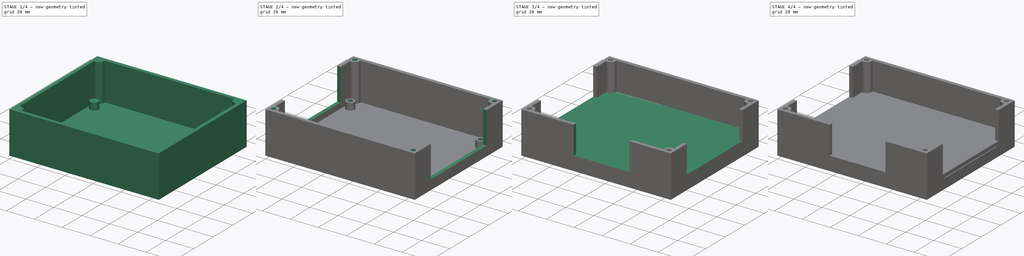
[diagram: build sequence overview — one tinted view per stage of 4, left to right]
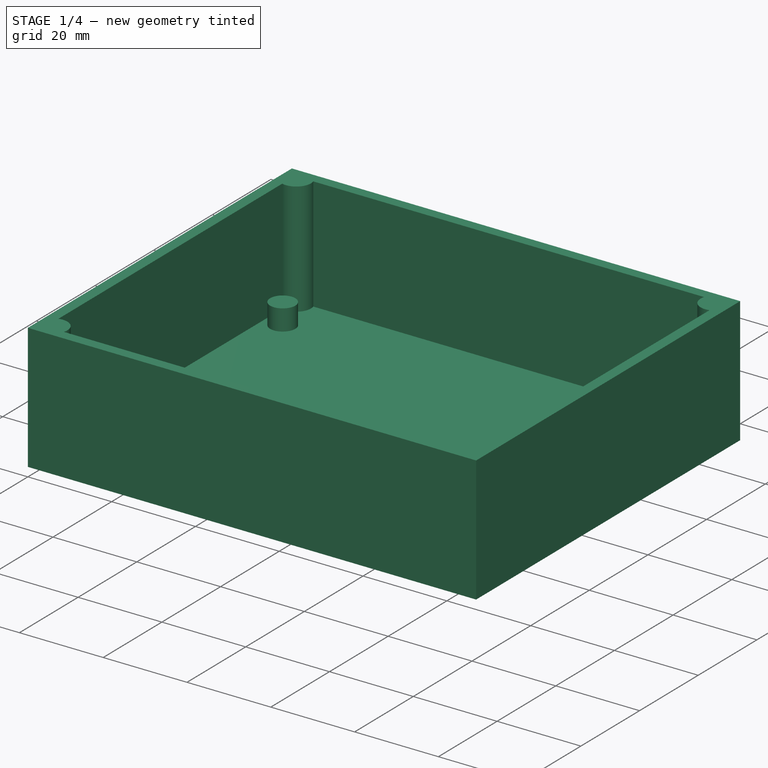
[diagram: stage 1 of 4 — iso view after this stage's code; geometry added in this stage tinted green]
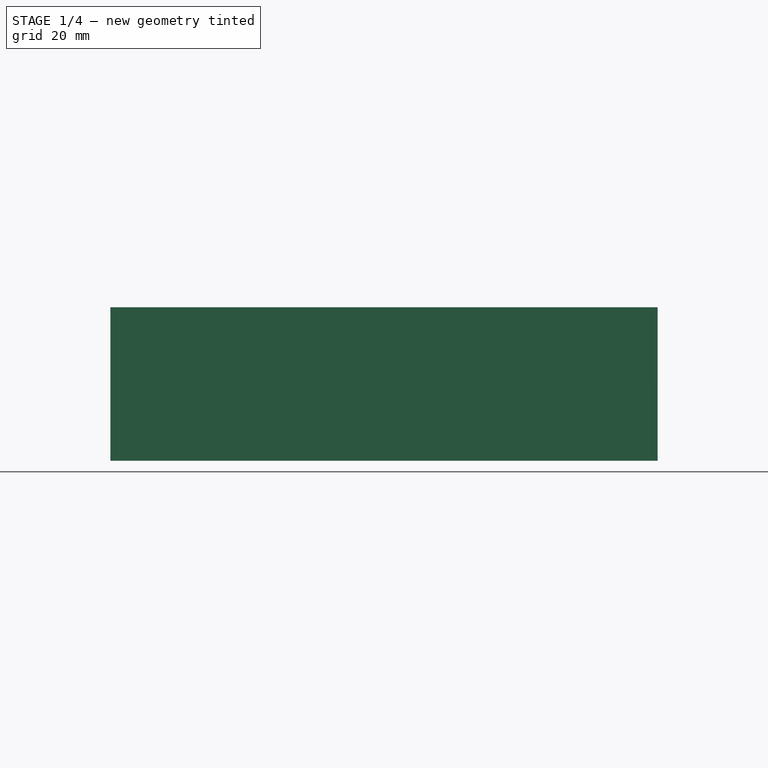
[diagram: stage 1 of 4 — front view after this stage's code; geometry added in this stage tinted green]
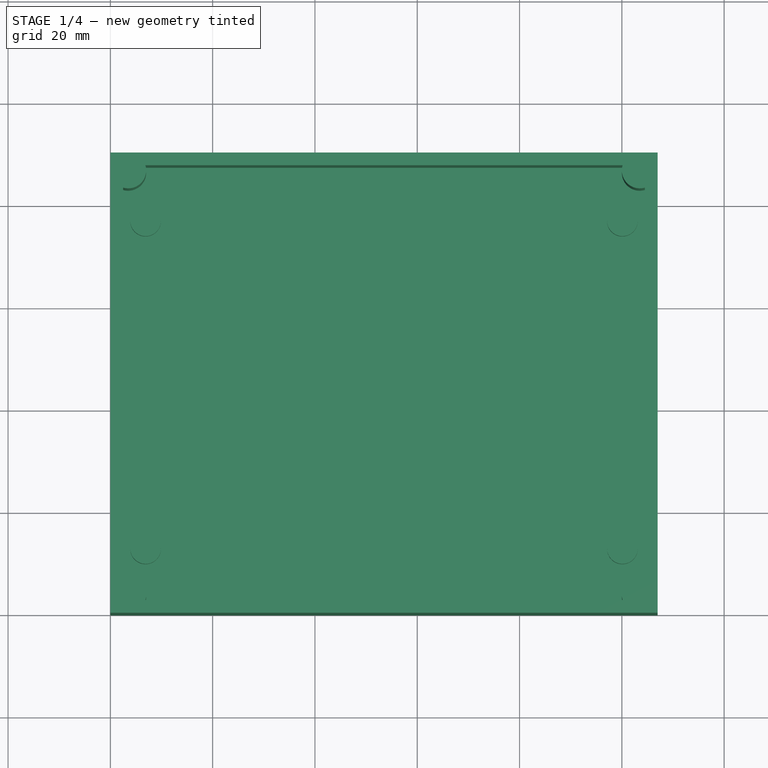
[diagram: stage 1 of 4 — top view after this stage's code; geometry added in this stage tinted green]
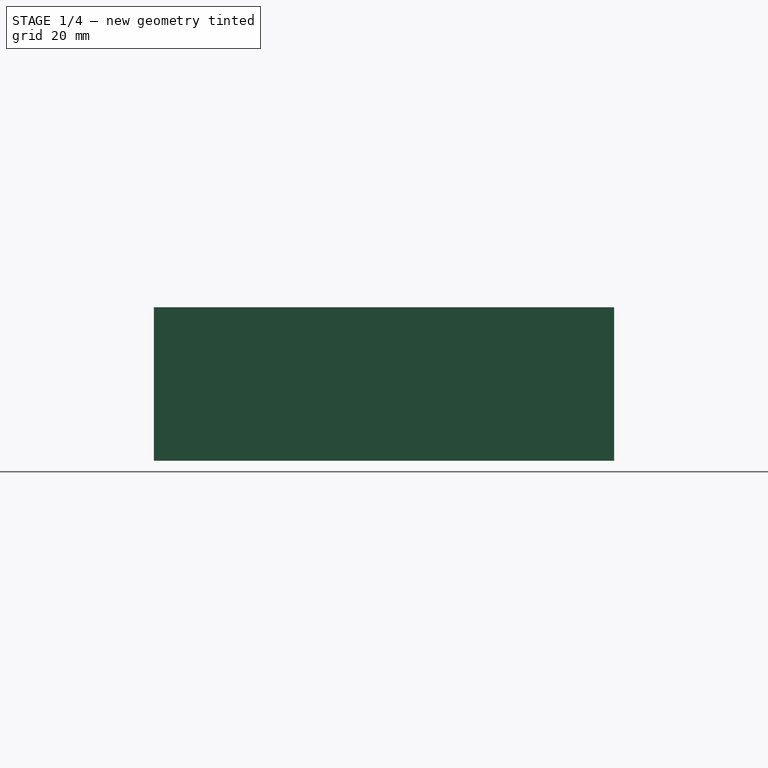
[diagram: stage 1 of 4 — right view after this stage's code; geometry added in this stage tinted green]
FCSTD DOCUMENT  (FreeCAD 0.20R29177 +426 (Git))
Label: moglabs-board-housing
License: All rights reserved
LicenseURL: http://en.wikipedia.org/wiki/All_rights_reserved
objects: Sketcher::SketchObject×12, Part::Feature×12, PartDesign::Pocket×8, App::Link×8, PartDesign::Pad×4, PartDesign::LinearPattern×4, PartDesign::MultiTransform×2, PartDesign::Body×2, App::LinkGroup×1
note: 56 computed .brp shape members not serialized (recipe doc carries the construction recipe); baked Part::Feature solids carry a one-line shape summary decoded from their .brp

FEATURE [Sketcher::SketchObject] Sketch
  FullyConstrained = true
  MapMode = 5
  Support = -> [XY_Plane]
  sketch-geometry (4):
    g0: LineSegment StartX=0 StartY=0 StartZ=0 EndX=107 EndY=0 EndZ=0
    g1: LineSegment StartX=107 StartY=0 StartZ=0 EndX=107 EndY=90 EndZ=0
    g2: LineSegment StartX=107 StartY=90 StartZ=0 EndX=0 EndY=90 EndZ=0
    g3: LineSegment StartX=0 StartY=90 StartZ=0 EndX=0 EndY=0 EndZ=0
  constraints (11):
    c: Coincident(g0,g1)
    c: Coincident(g1,g2)
    c: Coincident(g2,g3)
    c: Coincident(g3,g0)
    c: Horizontal(g0)
    c: Horizontal(g2)
    c: Vertical(g1)
    c: Vertical(g3)
    c: Coincident(g0,g-1)
    c: DistanceX(g2,g2) = 107
    c: DistanceY(g1,g1) = 90
FEATURE [PartDesign::Pad] Pad
  Direction = (0,0,1)
  Length = 30
  Length2 = 10
  Profile = -> Sketch
  ReferenceAxis = -> Sketch [N_Axis]
  Type = 0
FEATURE [Sketcher::SketchObject] Sketch001
  ExternalGeometry = -> [Pad]
  FullyConstrained = true
  MapMode = 5
  Placement = pos=(0,0,30) rot=(0,0,1;0rad)
  Support = -> [Pad]
  sketch-geometry (7):
    g0: LineSegment StartX=2.5 StartY=87.5 StartZ=0 EndX=104.5 EndY=87.5 EndZ=0
    g1: LineSegment StartX=104.5 StartY=87.5 StartZ=0 EndX=104.5 EndY=2.5 EndZ=0
    g2: LineSegment StartX=104.5 StartY=2.5 StartZ=0 EndX=2.5 EndY=2.5 EndZ=0
    g3: LineSegment StartX=2.5 StartY=2.5 StartZ=0 EndX=2.5 EndY=87.5 EndZ=0
    g4: LineSegment StartX=0 StartY=90 StartZ=0 EndX=107 EndY=0 EndZ=0
    g5: LineSegment StartX=107 StartY=90 StartZ=0 EndX=0 EndY=0 EndZ=0
    g6: GeomPoint X=53.5 Y=45 Z=0
  constraints (19):
    c: Coincident(g0,g1)
    c: Coincident(g1,g2)
    c: Coincident(g2,g3)
    c: Coincident(g3,g0)
    c: Horizontal(g0)
    c: Horizontal(g2)
    c: Vertical(g1)
    c: Vertical(g3)
    c: Coincident(g4,g-6)
    c: Coincident(g4,g-5)
    c: Coincident(g5,g-5)
    c: Coincident(g5,g-6)
    c: PointOnObject(g6,g4)
    c: PointOnObject(g6,g5)
    c: Symmetric(g0,g1,g6)
    c: DistanceX(g4,g0) = 2.5
    c: DistanceY(g0,g4) = 2.5
    c: Distance(g0) = 102
    c: Distance(g3) = 85
FEATURE [PartDesign::Pocket] Pocket
  BaseFeature = -> Pad
  Direction = (0,0,-1)
  Length = 27
  Length2 = 5
  Profile = -> Sketch001
  ReferenceAxis = -> Sketch001 [N_Axis]
  Type = 0
FEATURE [Sketcher::SketchObject] Sketch002
  ExternalGeometry = -> [Pocket]
  FullyConstrained = true
  MapMode = 5
  Placement = pos=(0,0,3) rot=(0,0,1;0rad)
  Support = -> [Pocket]
  sketch-geometry (4):
    g0: Circle CenterX=3.5 CenterY=86.5 CenterZ=0 NormalX=0 NormalY=0 NormalZ=1 AngleXU=0 Radius=3.5
    g1: Circle CenterX=3.5 CenterY=3.5 CenterZ=0 NormalX=0 NormalY=0 NormalZ=1 AngleXU=0 Radius=3.5
    g2: Circle CenterX=103.5 CenterY=86.5 CenterZ=0 NormalX=0 NormalY=0 NormalZ=1 AngleXU=0 Radius=3.5
    g3: Circle CenterX=103.5 CenterY=3.5 CenterZ=0 NormalX=0 NormalY=0 NormalZ=1 AngleXU=0 Radius=3.5
  constraints (12):
    c: Radius(g0) = 3.5
    c: Tangent(g0,g-11)
    c: Tangent(g0,g-12)
    c: Equal(g1,g0)
    c: Tangent(g1,g-12)
    c: Tangent(g1,g-14)
    c: Equal(g2,g0)
    c: Equal(g3,g0)
    c: Tangent(g2,g-11)
    c: Tangent(g2,g-13)
    c: Tangent(g3,g-13)
    c: Tangent(g3,g-14)
FEATURE [PartDesign::Pad] Pad001
  BaseFeature = -> Pocket
  Direction = (0,0,1)
  Length = 27
  Length2 = 10
  Profile = -> Sketch002
  ReferenceAxis = -> Sketch002 [N_Axis]
  Type = 0
FEATURE [Sketcher::SketchObject] Sketch003
  ExternalGeometry = -> [Pad001]
  FullyConstrained = true
  MapMode = 5
  Placement = pos=(0,0,3) rot=(0,0,1;0rad)
  Support = -> [Pad001]
  sketch-geometry (11):
    g0: Circle CenterX=6.891 CenterY=77.04 CenterZ=0 NormalX=0 NormalY=0 NormalZ=1 AngleXU=0 Radius=3
    g1: Circle CenterX=6.891 CenterY=12.96 CenterZ=0 NormalX=0 NormalY=0 NormalZ=1 AngleXU=0 Radius=3
    g2: Circle CenterX=100.109 CenterY=77.04 CenterZ=0 NormalX=0 NormalY=0 NormalZ=1 AngleXU=0 Radius=3
    g3: Circle CenterX=100.109 CenterY=12.96 CenterZ=0 NormalX=0 NormalY=0 NormalZ=1 AngleXU=0 Radius=3
    g4: LineSegment StartX=6.891 StartY=77.04 StartZ=0 EndX=100.109 EndY=77.04 EndZ=0
    g5: LineSegment StartX=100.109 StartY=77.04 StartZ=0 EndX=100.109 EndY=12.96 EndZ=0
    g6: LineSegment StartX=100.109 StartY=12.96 StartZ=0 EndX=6.891 EndY=12.96 EndZ=0
    g7: LineSegment StartX=6.891 StartY=12.96 StartZ=0 EndX=6.891 EndY=77.04 EndZ=0
    g8: GeomPoint X=53.5 Y=45 Z=0
    g9: LineSegment StartX=0 StartY=90 StartZ=0 EndX=107 EndY=0 EndZ=0
    g10: LineSegment StartX=107 StartY=90 StartZ=0 EndX=0 EndY=0 EndZ=0
  constraints (25):
    c: Diameter(g0) = 6
    c: Equal(g1,g0)
    c: Equal(g2,g0)
    c: Equal(g3,g0)
    c: Coincident(g4,g5)
    c: Coincident(g5,g6)
    c: Coincident(g6,g7)
    c: Coincident(g7,g4)
    c: Horizontal(g4)
    c: Horizontal(g6)
    c: Vertical(g5)
    c: Vertical(g7)
    c: DistanceX(g4,g4) = 93.218
    c: DistanceY(g7,g7) = 64.08
    c: Coincident(g0,g4)
    c: Coincident(g1,g6)
    c: Coincident(g2,g4)
    c: Coincident(g3,g5)
    c: Symmetric(g0,g3,g8)
    c: Coincident(g9,g-10)
    c: Coincident(g9,g-8)
    c: Coincident(g10,g-9)
    c: Coincident(g10,g-11)
    c: PointOnObject(g8,g9)
    c: PointOnObject(g8,g10)
FEATURE [PartDesign::Pad] Pad002
  BaseFeature = -> Pad001
  Direction = (0,0,1)
  Length = 5
  Length2 = 10
  Profile = -> Sketch003
  ReferenceAxis = -> Sketch003 [N_Axis]
  Type = 0
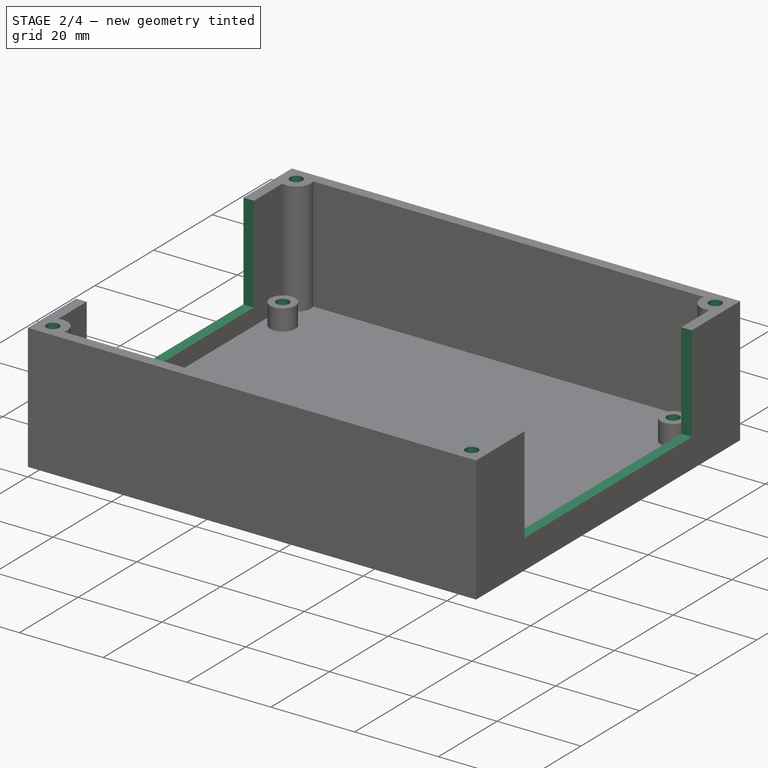
[diagram: stage 2 of 4 — iso view after this stage's code; geometry added in this stage tinted green]
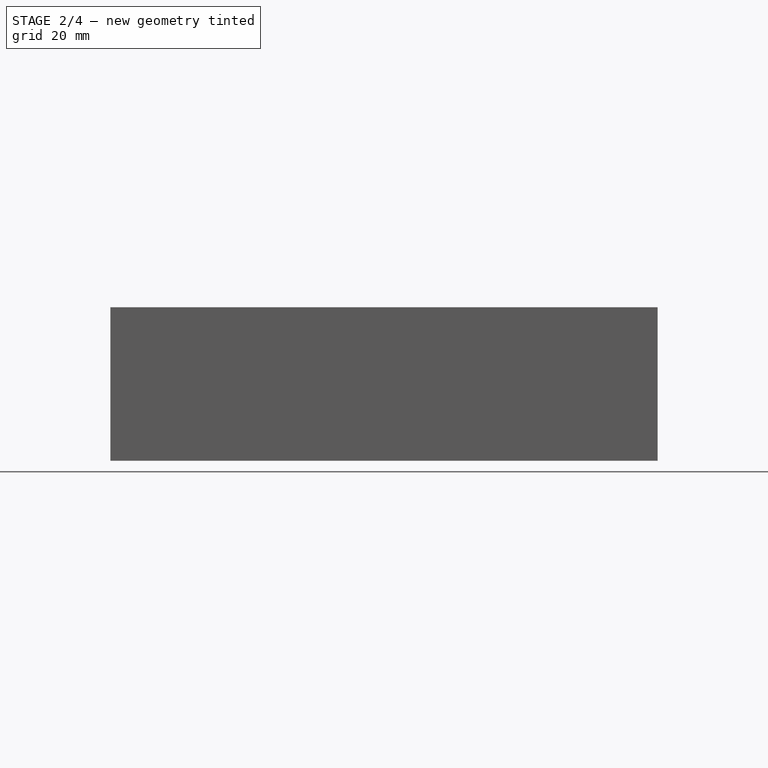
[diagram: stage 2 of 4 — front view after this stage's code; geometry added in this stage tinted green]
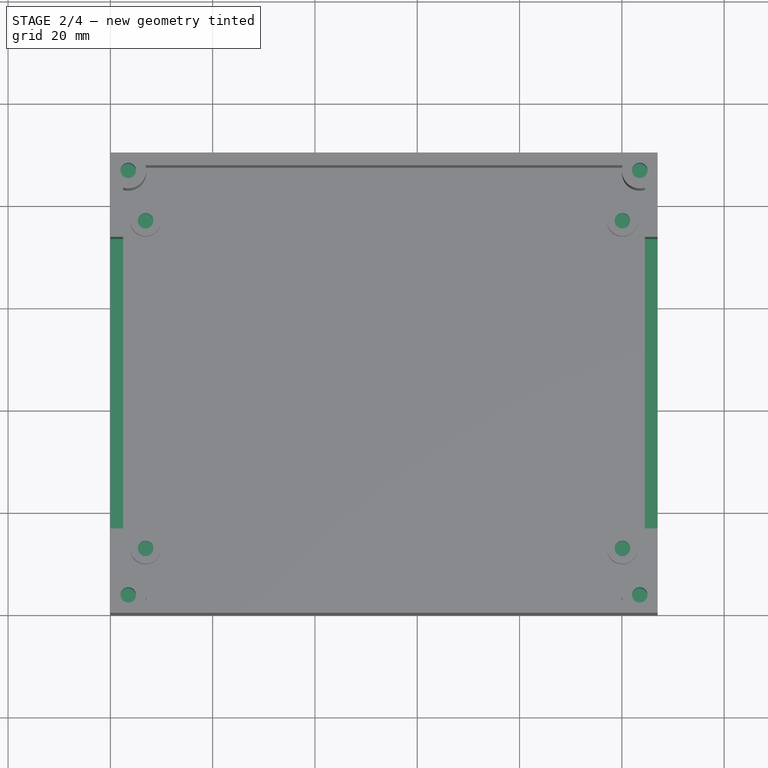
[diagram: stage 2 of 4 — top view after this stage's code; geometry added in this stage tinted green]
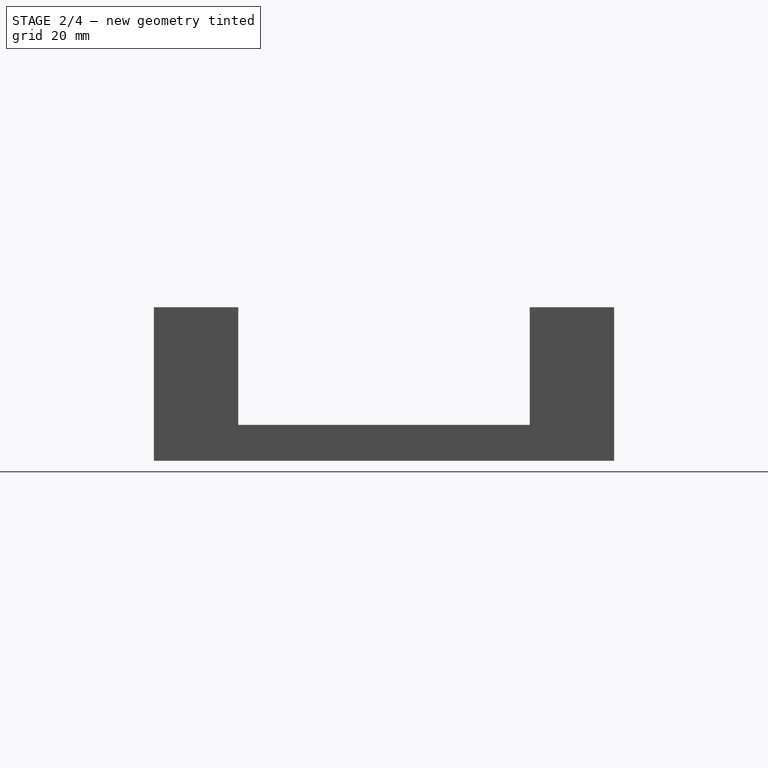
[diagram: stage 2 of 4 — right view after this stage's code; geometry added in this stage tinted green]
FEATURE [Sketcher::SketchObject] Sketch004
  ExternalGeometry = -> [Pad002]
  FullyConstrained = true
  MapMode = 5
  Placement = pos=(0,0,8) rot=(0,0,1;0rad)
  Support = -> [Pad002]
  sketch-geometry (4):
    g0: Circle CenterX=6.891 CenterY=77.04 CenterZ=0 NormalX=0 NormalY=0 NormalZ=1 AngleXU=0 Radius=1.5
    g1: Circle CenterX=100.109 CenterY=77.04 CenterZ=0 NormalX=0 NormalY=0 NormalZ=1 AngleXU=0 Radius=1.5
    g2: Circle CenterX=100.109 CenterY=12.96 CenterZ=0 NormalX=0 NormalY=0 NormalZ=1 AngleXU=0 Radius=1.5
    g3: Circle CenterX=6.891 CenterY=12.96 CenterZ=0 NormalX=0 NormalY=0 NormalZ=1 AngleXU=0 Radius=1.5
  constraints (8):
    c: Coincident(g0,g-3)
    c: Diameter(g0) = 3
    c: Coincident(g1,g-4)
    c: Coincident(g2,g-5)
    c: Coincident(g3,g-6)
    c: Equal(g0,g3)
    c: Equal(g1,g0)
    c: Equal(g2,g0)
FEATURE [PartDesign::Pocket] Pocket001
  BaseFeature = -> Pad002
  Direction = (0,0,-1)
  Length = 5
  Length2 = 5
  Profile = -> Sketch004
  ReferenceAxis = -> Sketch004 [N_Axis]
  Type = 0
FEATURE [Sketcher::SketchObject] Sketch007
  ExternalGeometry = -> [Pad001]
  FullyConstrained = true
  MapMode = 5
  Placement = pos=(0,0,30) rot=(0,0,1;0rad)
  Support = -> [Pad001]
  sketch-geometry (4):
    g0: Circle CenterX=3.5 CenterY=86.5 CenterZ=0 NormalX=0 NormalY=0 NormalZ=1 AngleXU=0 Radius=1.5
    g1: Circle CenterX=103.5 CenterY=86.5 CenterZ=0 NormalX=0 NormalY=0 NormalZ=1 AngleXU=0 Radius=1.5
    g2: Circle CenterX=103.5 CenterY=3.5 CenterZ=0 NormalX=0 NormalY=0 NormalZ=1 AngleXU=0 Radius=1.5
    g3: Circle CenterX=3.5 CenterY=3.5 CenterZ=0 NormalX=0 NormalY=0 NormalZ=1 AngleXU=0 Radius=1.5
  constraints (8):
    c: Diameter(g0) = 3
    c: Equal(g3,g0)
    c: Equal(g1,g0)
    c: Equal(g2,g0)
    c: Coincident(g0,g-7)
    c: Coincident(g1,g-8)
    c: Coincident(g-10,g2)
    c: Coincident(g-9,g3)
FEATURE [PartDesign::Pocket] Pocket003
  BaseFeature = -> Pocket001
  Direction = (0,0,-1)
  Length = 10
  Length2 = 5
  Profile = -> Sketch007
  ReferenceAxis = -> Sketch007 [N_Axis]
  Type = 0
FEATURE [PartDesign::Body] Body001  label="Top"
  Group = -> [Sketch005,Pad003,Sketch008,Pocket004,Sketch009,Pocket005,MultiTransform,LinearPattern,LinearPattern001,MultiTransform001,LinearPattern002,LinearPattern003,Sketch012,Pocket008]
  Origin = -> Origin001
  Placement = pos=(0,0,30) rot=(0,0,1;0rad)
  Tip = -> Pocket008
FEATURE [Sketcher::SketchObject] Sketch014
  ExternalGeometry = -> [Pocket003]
  FullyConstrained = true
  MapMode = 5
  Placement = pos=(0,0,0) rot=(0.57735,-0.57735,-0.57735;2.0944rad)
  sketch-geometry (5):
    g0: GeomPoint X=-45 Y=30 Z=0
    g1: LineSegment StartX=-73.5 StartY=30 StartZ=0 EndX=-16.5 EndY=30 EndZ=0
    g2: LineSegment StartX=-16.5 StartY=30 StartZ=0 EndX=-16.5 EndY=7 EndZ=0
    g3: LineSegment StartX=-16.5 StartY=7 StartZ=0 EndX=-73.5 EndY=7 EndZ=0
    g4: LineSegment StartX=-73.5 StartY=7 StartZ=0 EndX=-73.5 EndY=30 EndZ=0
  constraints (12):
    c: Coincident(g1,g2)
    c: Coincident(g2,g3)
    c: Coincident(g3,g4)
    c: Coincident(g4,g1)
    c: Horizontal(g1)
    c: Horizontal(g3)
    c: Vertical(g2)
    c: Vertical(g4)
    c: Symmetric(g1,g1,g0)
    c: DistanceX(g1,g1) = 57
    c: DistanceY(g4,g4) = 23
    c: Symmetric(g-3,g-3,g0)
FEATURE [PartDesign::Pocket] Pocket010
  BaseFeature = -> Pocket003
  Direction = (1,0,0)
  Length = 5
  Length2 = 5
  Profile = -> Sketch014
  ReferenceAxis = -> Sketch014 [N_Axis]
  Type = 1
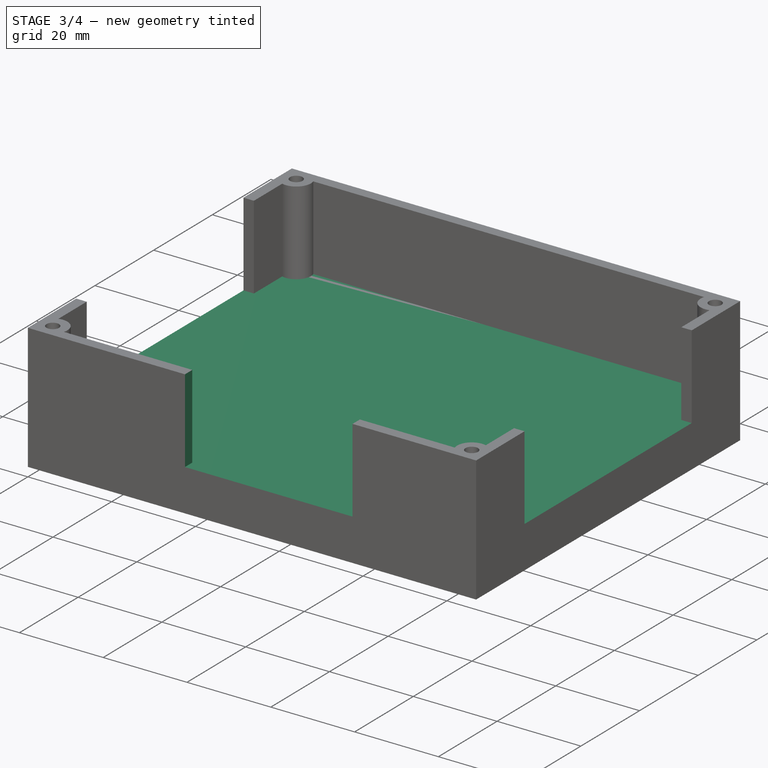
[diagram: stage 3 of 4 — iso view after this stage's code; geometry added in this stage tinted green]
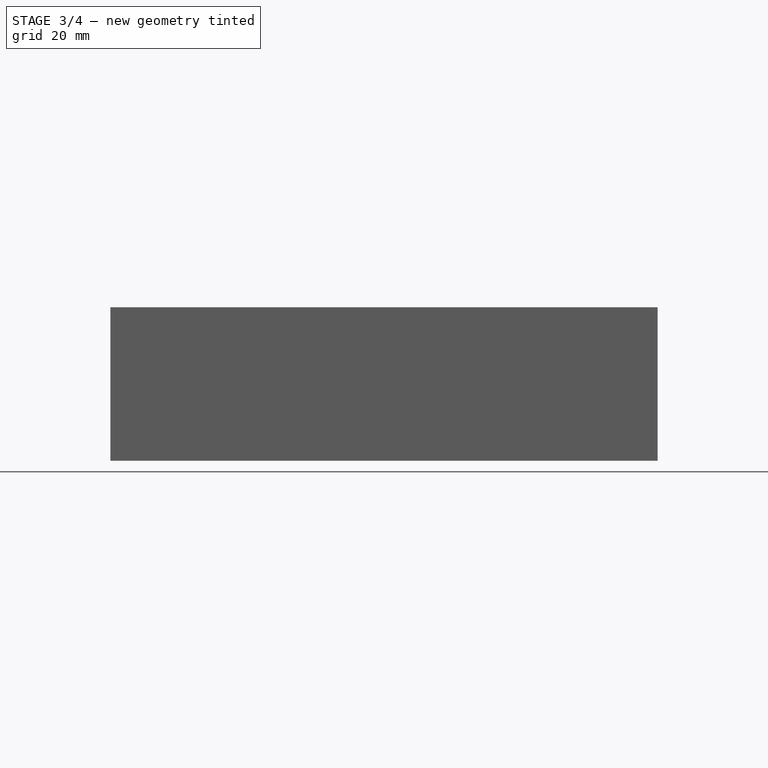
[diagram: stage 3 of 4 — front view after this stage's code; geometry added in this stage tinted green]
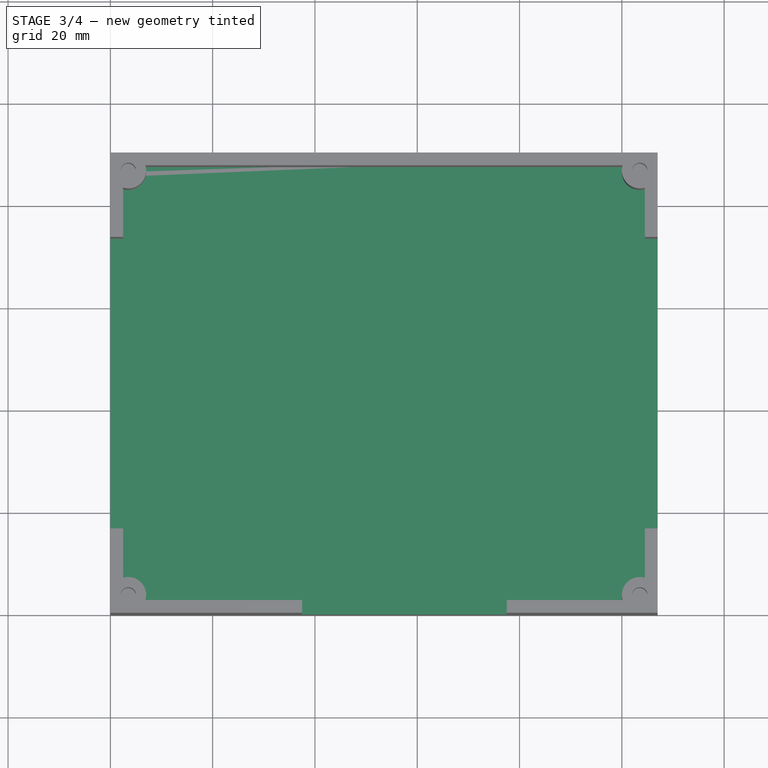
[diagram: stage 3 of 4 — top view after this stage's code; geometry added in this stage tinted green]
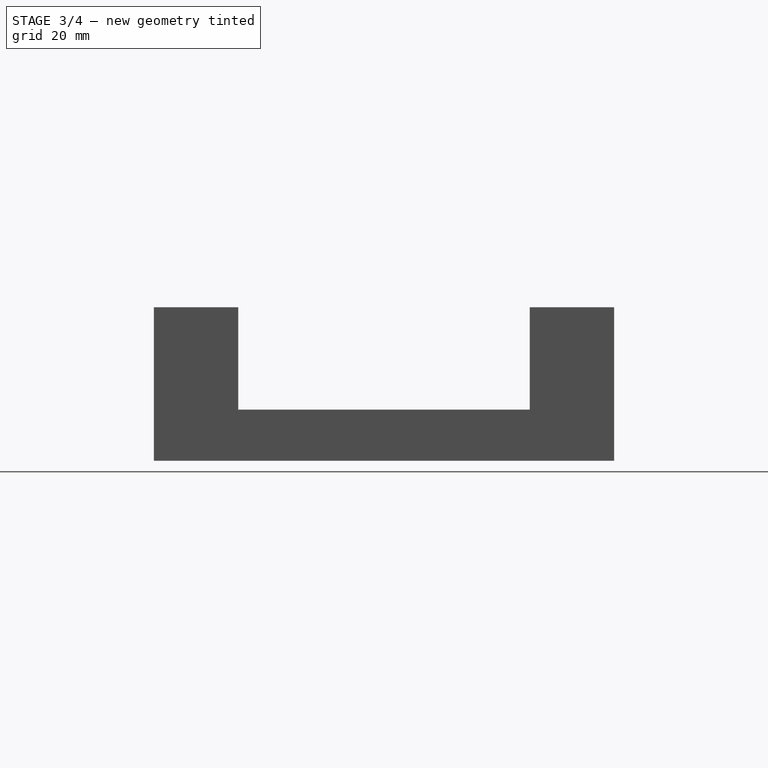
[diagram: stage 3 of 4 — right view after this stage's code; geometry added in this stage tinted green]
FEATURE [Sketcher::SketchObject] Sketch005
  FullyConstrained = true
  MapMode = 5
  Support = -> [XY_Plane001]
  sketch-geometry (4):
    g0: LineSegment StartX=0 StartY=0 StartZ=0 EndX=107 EndY=0 EndZ=0
    g1: LineSegment StartX=107 StartY=0 StartZ=0 EndX=107 EndY=90 EndZ=0
    g2: LineSegment StartX=107 StartY=90 StartZ=0 EndX=0 EndY=90 EndZ=0
    g3: LineSegment StartX=0 StartY=90 StartZ=0 EndX=0 EndY=0 EndZ=0
  constraints (11):
    c: Coincident(g0,g1)
    c: Coincident(g1,g2)
    c: Coincident(g2,g3)
    c: Coincident(g3,g0)
    c: Horizontal(g0)
    c: Horizontal(g2)
    c: Vertical(g1)
    c: Vertical(g3)
    c: Coincident(g0,g-1)
    c: DistanceX(g2,g2) = 107
    c: DistanceY(g1,g1) = 90
FEATURE [PartDesign::Pad] Pad003
  Direction = (0,0,1)
  Length = 10
  Length2 = 10
  Profile = -> Sketch005
  ReferenceAxis = -> Sketch005 [N_Axis]
  Type = 0
FEATURE [Sketcher::SketchObject] Sketch008
  ExternalGeometry = -> [Pad003]
  FullyConstrained = true
  MapMode = 5
  Placement = pos=(0,0,10) rot=(0,0,1;0rad)
  Support = -> [Pad003]
  sketch-geometry (1):
    g0: Circle CenterX=3.5 CenterY=86.5 CenterZ=0 NormalX=0 NormalY=0 NormalZ=1 AngleXU=0 Radius=2.5
  constraints (3):
    c: Diameter(g0) = 5
    c: DistanceY(g0,g-4) = 3.5
    c: DistanceX(g-4,g0) = 3.5
FEATURE [PartDesign::Pocket] Pocket004
  BaseFeature = -> Pad003
  Direction = (0,0,-1)
  Length = 5
  Length2 = 5
  Profile = -> Sketch008
  ReferenceAxis = -> Sketch008 [N_Axis]
  Type = 0
FEATURE [Sketcher::SketchObject] Sketch015
  ExternalGeometry = -> [Pocket010]
  FullyConstrained = true
  MapMode = 5
  Placement = pos=(0,0,0) rot=(1,0,0;1.5708rad)
  Support = -> [Pocket010]
  sketch-geometry (4):
    g0: LineSegment StartX=37.5 StartY=30 StartZ=0 EndX=77.5 EndY=30 EndZ=0
    g1: LineSegment StartX=77.5 StartY=30 StartZ=0 EndX=77.5 EndY=7 EndZ=0
    g2: LineSegment StartX=77.5 StartY=7 StartZ=0 EndX=37.5 EndY=7 EndZ=0
    g3: LineSegment StartX=37.5 StartY=7 StartZ=0 EndX=37.5 EndY=30 EndZ=0
  constraints (12):
    c: Coincident(g0,g1)
    c: Coincident(g1,g2)
    c: Coincident(g2,g3)
    c: Coincident(g3,g0)
    c: Horizontal(g0)
    c: Horizontal(g2)
    c: Vertical(g1)
    c: Vertical(g3)
    c: PointOnObject(g0,g-3)
    c: DistanceX(g0,g0) = 40
    c: DistanceY(g3,g3) = 23
    c: DistanceX(g-3,g0) = 34
FEATURE [PartDesign::Pocket] Pocket011
  BaseFeature = -> Pocket010
  Direction = (0,1,-2e-16)
  Length = 5
  Length2 = 5
  Profile = -> Sketch015
  ReferenceAxis = -> Sketch015 [N_Axis]
  Type = 2
FEATURE [PartDesign::Body] Body  label="Base"
  Group = -> [Sketch,Pad,Sketch001,Pocket,Sketch002,Pad001,Sketch003,Pad002,Sketch004,Pocket001,Sketch007,Pocket003,Sketch014,Pocket010,Sketch015,Pocket011]
  Origin = -> Origin
  Tip = -> Pocket011
FEATURE [Part::Feature] Solid  label="D_1206_3216Metric"
  shape: bbox 3.4 x 1.87 x 0.96 mm, 39 faces (baked)
FEATURE [Part::Feature] Solid001  label="C_1206_3216Metric"
  shape: bbox 3.2 x 1.6 x 1.6 mm, 28 faces (baked)
FEATURE [Part::Feature] Solid002  label="R_1206_3216Metric"
  shape: bbox 3.2 x 1.6 x 0.55 mm, 26 faces (baked)
FEATURE [Part::Feature] Solid003  label="SOIC-8_5.275x5.275mm_P1.27mm"
  shape: bbox 7.9 x 5.275 x 2.055 mm, 156 faces (baked)
FEATURE [Part::Feature] Solid004  label="731000167"
  shape: bbox 14.77 x 16.81 x 35.21 mm, 191 faces (baked)
FEATURE [Part::Feature] Solid005  label="PinSocket_1x16_P2.54mm_Vertical"
  shape: bbox 2.54 x 40.64 x 10.1 mm, 506 faces (baked)
FEATURE [Part::Feature] Solid006  label="C_Disc_D5.0mm_W2.5mm_P2.50mm"
  shape: bbox 5 x 2.5 x 7.1 mm, 6 faces (baked)
FEATURE [Part::Feature] Solid007  label="PinHeader_1x02_P2.54mm_Vertical"
  Placement = pos=(40.513,2.794,1.65) rot=(0,0,1;1.5708rad)
  shape: bbox 5.08 x 2.54 x 11.54 mm, 52 faces (baked)
FEATURE [Part::Feature] Solid008  label="Potentiometer_Bourns_3266W_Vertical"
  Placement = pos=(95.332,29.225,1.65) rot=(0,0,-1;1.5708rad)
  shape: bbox 4.5 x 6.71 x 13.14 mm, 22 faces (baked)
FEATURE [Part::Feature] Solid009  label="CP_Radial_D5.0mm_P2.00mm"
  shape: bbox 6.128 x 6.515 x 7 mm, 49 faces (baked)
FEATURE [Part::Feature] Solid010  label="Converter_DCDC_XP_POWER-IAxxxxS_THT"
  Placement = pos=(26.164,2.544,1.65) rot=(0,0,1;3.14159rad)
  shape: bbox 5.59 x 18.8 x 13.21 mm, 37 faces (baked)
FEATURE [Part::Feature] Solid011  label="moglabs-remote-locking-board PCB"
  shape: bbox 99.9 x 70.49 x 1.6 mm, 114 faces (baked)
FEATURE [App::Link] Link  label="D_1206_3216Metric001"
  ElementCount = 5
  LinkedObject = -> Solid
  PlacementList = 5 placements: [(28.829,49.6561,1.65),(23.749,40.9661,1.65),(27.559,44.9936,1.65),(34.925,4.318,1.65),(23.749,34.6161,1.65)]
  ScaleList = (5) [(1,1,1),(1,1,1),(1,1,1),(1,1,1),(1,1,1)]
  ShowElement = false
FEATURE [App::Link] Link001  label="C_1206_3216Metric001"
  ElementCount = 5
  LinkedObject = -> Solid001
  PlacementList = 5 placements: [(32.893,64.8085,1.65),(88.265,31.7885,1.65),(78.359,25.6925,1.65),(80.3525,53.34,1.65),(22.225,59.6515,1.65)]
  ScaleList = (5) [(1,1,1),(1,1,1),(1,1,1),(1,1,1),(1,1,1)]
  ShowElement = false
FEATURE [App::Link] Link002  label="R_1206_3216Metric001"
  ElementCount = 10
  LinkedObject = -> Solid002
  PlacementList = 10 placements: [(27.813,28.702,1.65),(18.415,66.294,1.65),(84.963,42.164,1.65),(78.359,39.396,1.65),(29.337,24.358,1.65),(21.971,49.53,1.65),(84.963,37.084,1.65),(25.4,59.664,1.65),(81.153,39.396,1.65),(28.575,59.664,1.65)]
  ScaleList = (10) [(1,1,1),(1,1,1),(1,1,1),(1,1,1),(1,1,1),(1,1,1),(1,1,1),(1,1,1),(1,1,1),(1,1,1)]
  ShowElement = false
FEATURE [App::Link] Link003  label="SOIC-8_5.275x5.275mm_P1.27mm001"
  ElementCount = 3
  LinkedObject = -> Solid003
  PlacementList = 3 placements: [(80.137,47.244,1.65),(81.915,31.496,1.65),(26.035,65.659,1.65)]
  ScaleList = (3) [(1,1,1),(1,1,1),(1,1,1)]
  ShowElement = false
FEATURE [App::Link] Link004  label="731000167001"
  ElementCount = 4
  LinkedObject = -> Solid004
  PlacementList = 4 placements: [(-2.673,35.052,6.45),(102.439,18.542,6.45),(-2.673,55.626,6.45),(-2.673,14.478,6.45)]
  ScaleList = (4) [(1,1,1),(1,1,1),(1,1,1),(1,1,1)]
  ShowElement = false
FEATURE [App::Link] Link005  label="PinSocket_1x16_P2.54mm_Vertical001"
  ElementCount = 2
  LinkedObject = -> Solid005
  PlacementList = 2 placements: [(33.299,53.2486,1.65),(73.914,53.2486,1.65)]
  ScaleList = (2) [(1,1,1),(1,1,1)]
  ShowElement = false
FEATURE [App::Link] Link006  label="C_Disc_D5.0mm_W2.5mm_P2.50mm001"
  ElementCount = 2
  LinkedObject = -> Solid006
  PlacementList = 2 placements: [(25.019,50.6886,1.65),(89.535,38.842,1.65)]
  ScaleList = (2) [(1,1,1),(1,1,1)]
  ShowElement = false
FEATURE [App::Link] Link007  label="CP_Radial_D5.0mm_P2.00mm001"
  ElementCount = 2
  LinkedObject = -> Solid009
  PlacementList = 2 placements: [(20.701,16.7031,1.65),(20.701,6.65064,1.65)]
  ScaleList = (2) [(1,1,1),(1,1,1)]
  ShowElement = false
FEATURE [App::LinkGroup] LinkGroup  label="moglabs-remote-locking-board 1"
  ElementList = -> [Link,Link001,Link002,Link003,Link004,Link005,Link006,Solid007,Solid008,Link007,Solid010,Solid011]
  LinkMode = 0
  Placement = pos=(3.7,9.7,7) rot=(0,0,1;0rad)
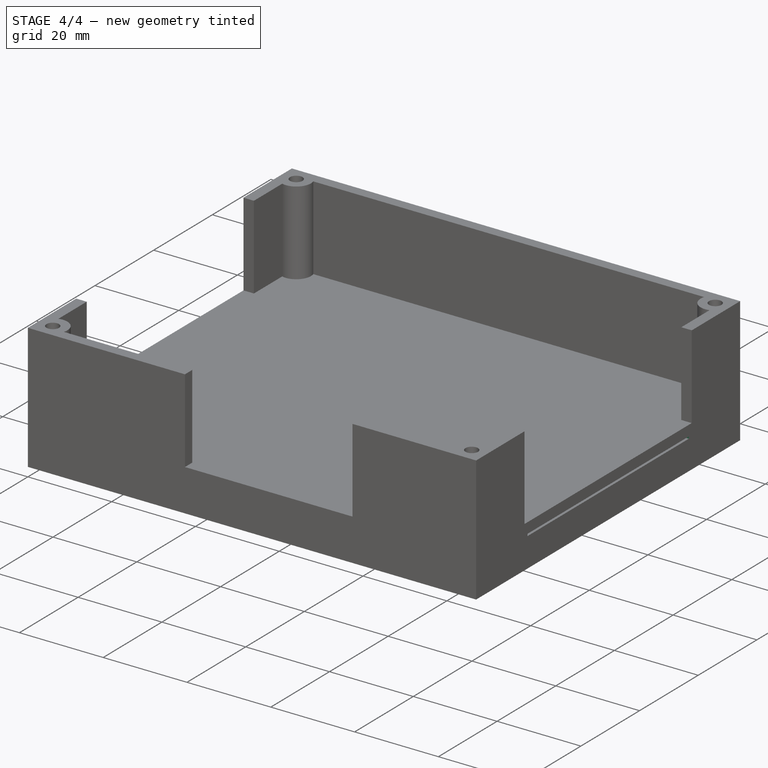
[diagram: stage 4 of 4 — iso view after this stage's code; geometry added in this stage tinted green]
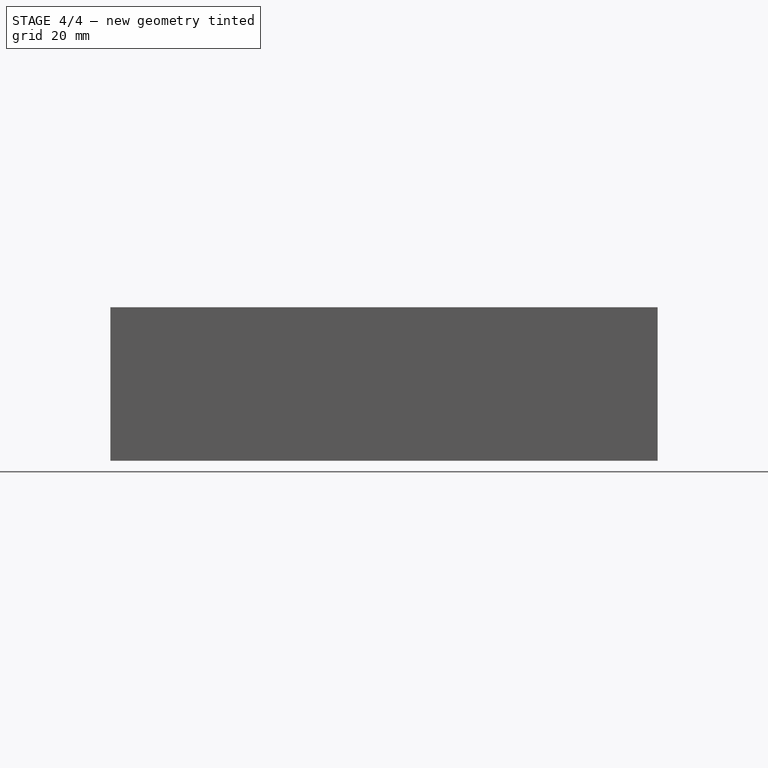
[diagram: stage 4 of 4 — front view after this stage's code; geometry added in this stage tinted green]
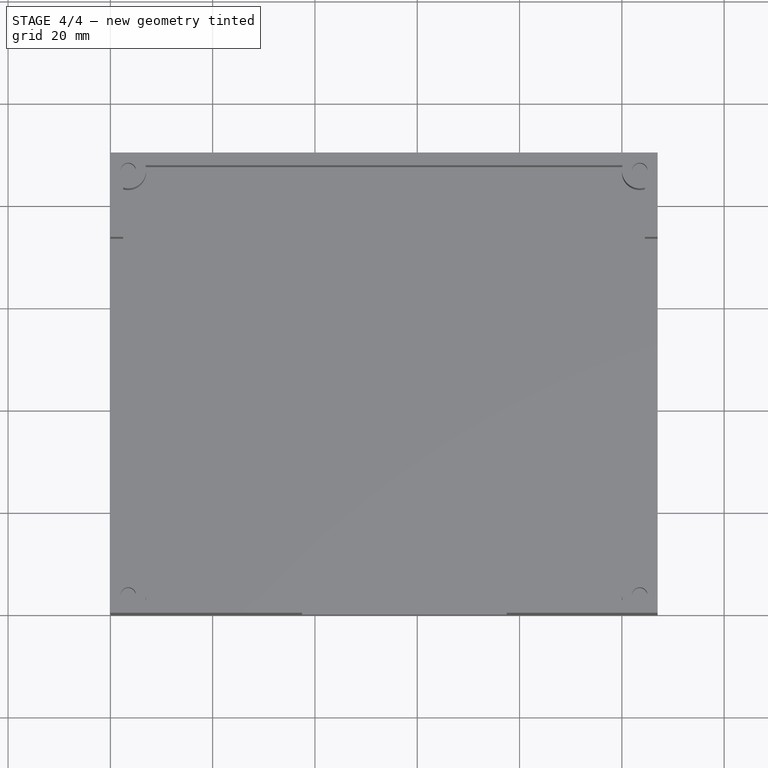
[diagram: stage 4 of 4 — top view after this stage's code; geometry added in this stage tinted green]
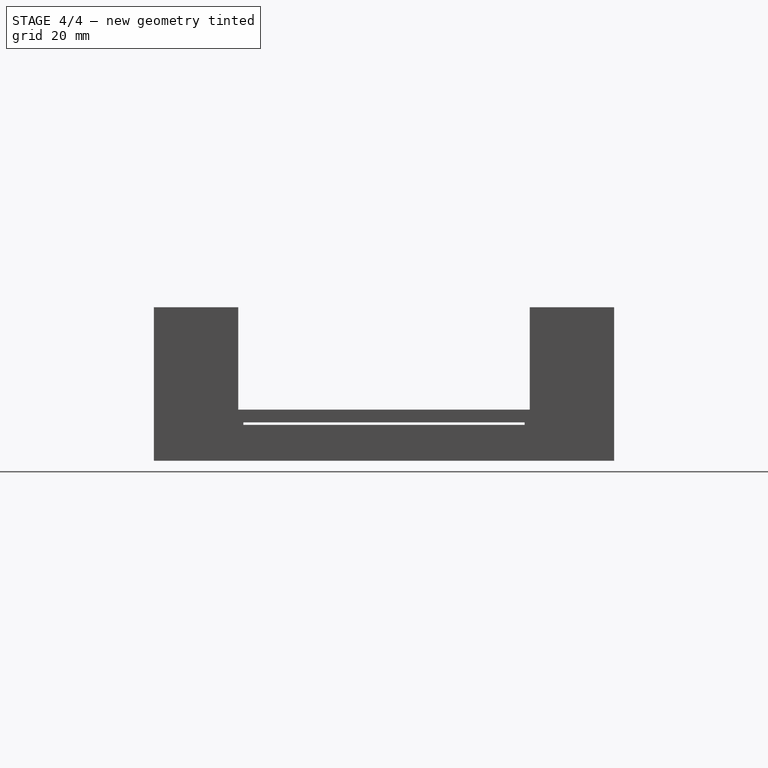
[diagram: stage 4 of 4 — right view after this stage's code; geometry added in this stage tinted green]
FEATURE [Sketcher::SketchObject] Sketch009
  ExternalGeometry = -> [Pocket004]
  FullyConstrained = true
  MapMode = 5
  Placement = pos=(0,0,5) rot=(0,0,1;0rad)
  Support = -> [Pocket004]
  sketch-geometry (1):
    g0: Circle CenterX=3.5 CenterY=86.5 CenterZ=0 NormalX=0 NormalY=0 NormalZ=1 AngleXU=0 Radius=1.5
  constraints (2):
    c: Coincident(g0,g-3)
    c: Diameter(g0) = 3
FEATURE [PartDesign::Pocket] Pocket005
  BaseFeature = -> Pocket004
  Direction = (0,0,-1)
  Length = 5
  Length2 = 5
  Profile = -> Sketch009
  ReferenceAxis = -> Sketch009 [N_Axis]
  Type = 1
FEATURE [PartDesign::LinearPattern] LinearPattern
  Direction = -> Sketch008 [H_Axis]
  Length = 100
  Occurrences = 2
FEATURE [PartDesign::LinearPattern] LinearPattern001
  Direction = -> Sketch008 [V_Axis]
  Length = 83
  Occurrences = 2
  Reversed = true
FEATURE [PartDesign::MultiTransform] MultiTransform
  BaseFeature = -> Pocket005
  Originals = -> [Pocket004]
  Transformations = -> [LinearPattern,LinearPattern001]
FEATURE [PartDesign::LinearPattern] LinearPattern002
  Direction = -> Sketch009 [H_Axis]
  Length = 100
  Occurrences = 2
FEATURE [PartDesign::LinearPattern] LinearPattern003
  Direction = -> Sketch009 [V_Axis]
  Length = 83
  Occurrences = 2
  Reversed = true
FEATURE [PartDesign::MultiTransform] MultiTransform001
  BaseFeature = -> MultiTransform
  Originals = -> [Pocket005]
  Transformations = -> [LinearPattern002,LinearPattern003]
FEATURE [Sketcher::SketchObject] Sketch012
  ExternalGeometry = -> [MultiTransform001]
  FullyConstrained = true
  MapMode = 5
  Placement = pos=(0,0,0) rot=(1,0,0;3.14159rad)
  Support = -> [MultiTransform001]
  sketch-geometry (8):
    g0: LineSegment StartX=0 StartY=0 StartZ=0 EndX=107 EndY=-90 EndZ=0
    g1: LineSegment StartX=107 StartY=0 StartZ=0 EndX=0 EndY=-90 EndZ=0
    g2: GeomPoint X=53.5 Y=-45 Z=0
    g3: LineSegment StartX=-1.5 StartY=-17.5 StartZ=0 EndX=-1.5 EndY=-72.5 EndZ=0
    g4: LineSegment StartX=-1.5 StartY=-72.5 StartZ=0 EndX=108.5 EndY=-72.5 EndZ=0
    g5: LineSegment StartX=108.5 StartY=-72.5 StartZ=0 EndX=108.5 EndY=-17.5 EndZ=0
    g6: LineSegment StartX=108.5 StartY=-17.5 StartZ=0 EndX=-1.5 EndY=-17.5 EndZ=0
    g7: GeomPoint X=53.5 Y=-45 Z=0
  constraints (18):
    c: Coincident(g0,g-1)
    c: Coincident(g0,g-5)
    c: Coincident(g1,g-3)
    c: Coincident(g1,g-4)
    c: PointOnObject(g2,g0)
    c: PointOnObject(g2,g1)
    c: Coincident(g3,g4)
    c: Coincident(g4,g5)
    c: Coincident(g5,g6)
    c: Coincident(g6,g3)
    c: Horizontal(g4)
    c: Horizontal(g6)
    c: Vertical(g3)
    c: Vertical(g5)
    c: Symmetric(g4,g3,g7)
    c: Coincident(g7,g2)
    c: DistanceX(g6,g6) = 110
    c: DistanceY(g3,g3) = 55
FEATURE [PartDesign::Pocket] Pocket008
  BaseFeature = -> MultiTransform001
  Direction = (0,0,1)
  Length = 7.5
  Length2 = 5
  Profile = -> Sketch012
  ReferenceAxis = -> Sketch012 [N_Axis]
  Type = 0
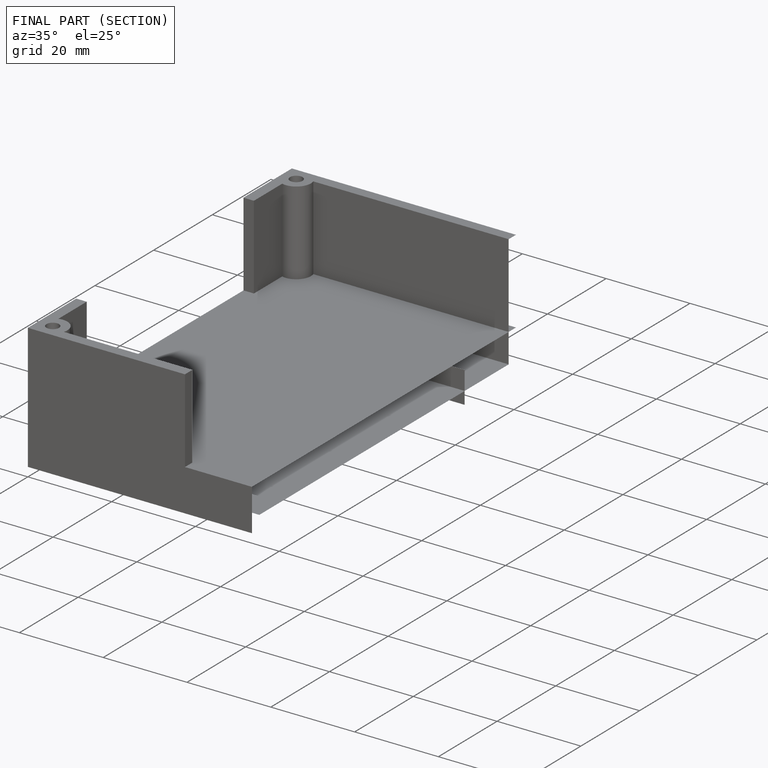
[diagram: finished part — half-section view (interior)]
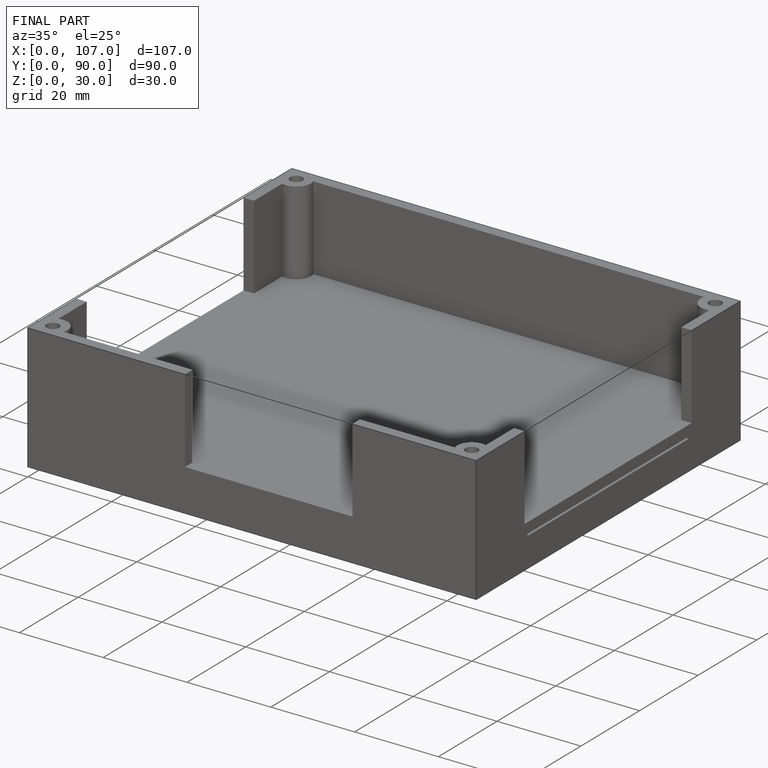
[diagram: finished part — iso view with bounding-box wireframe]
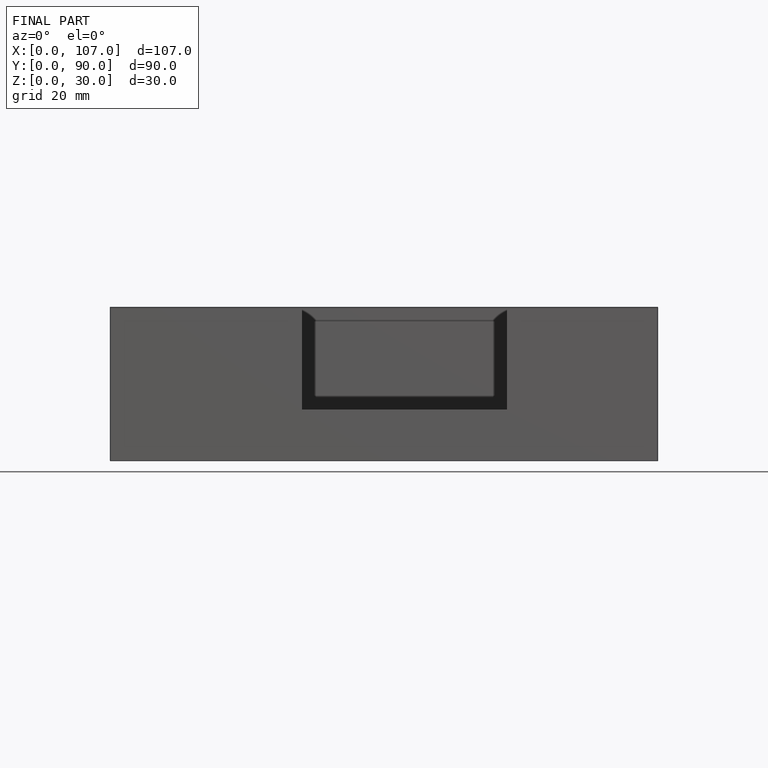
[diagram: finished part — front view with bounding-box wireframe]
